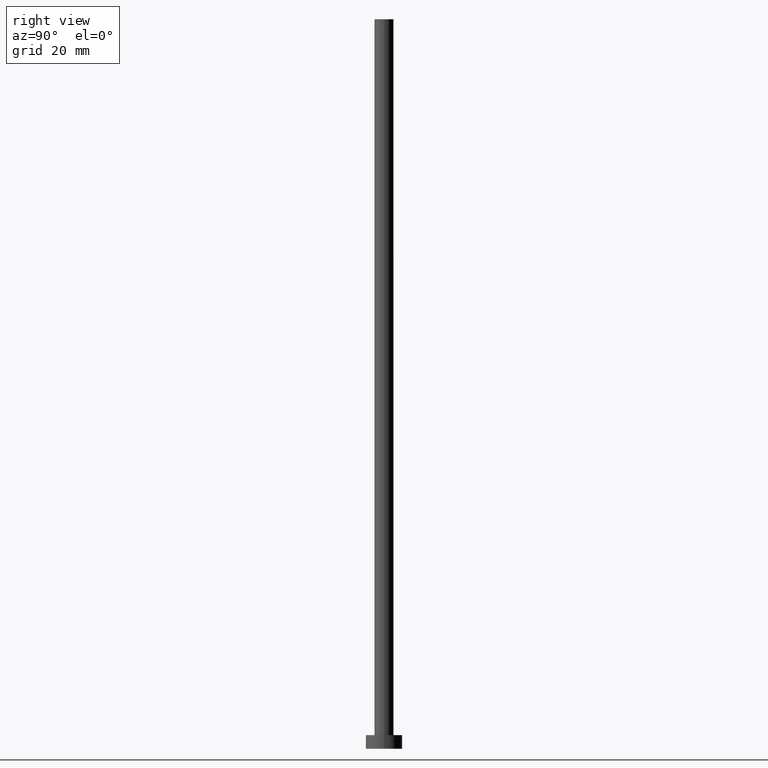
[diagram: clean part render]
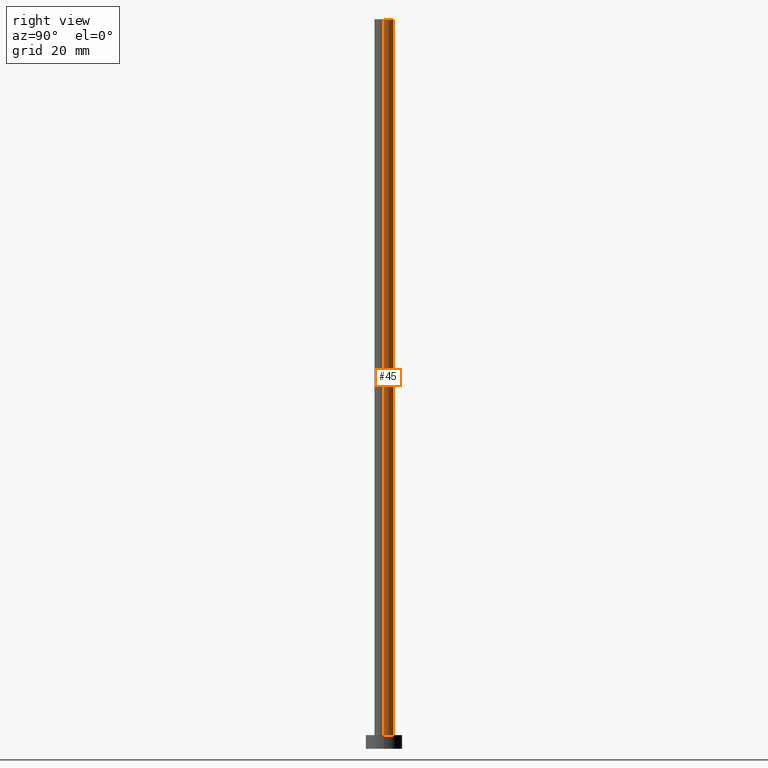
[diagram: same view with one face highlighted and labeled with its STEP entity id]
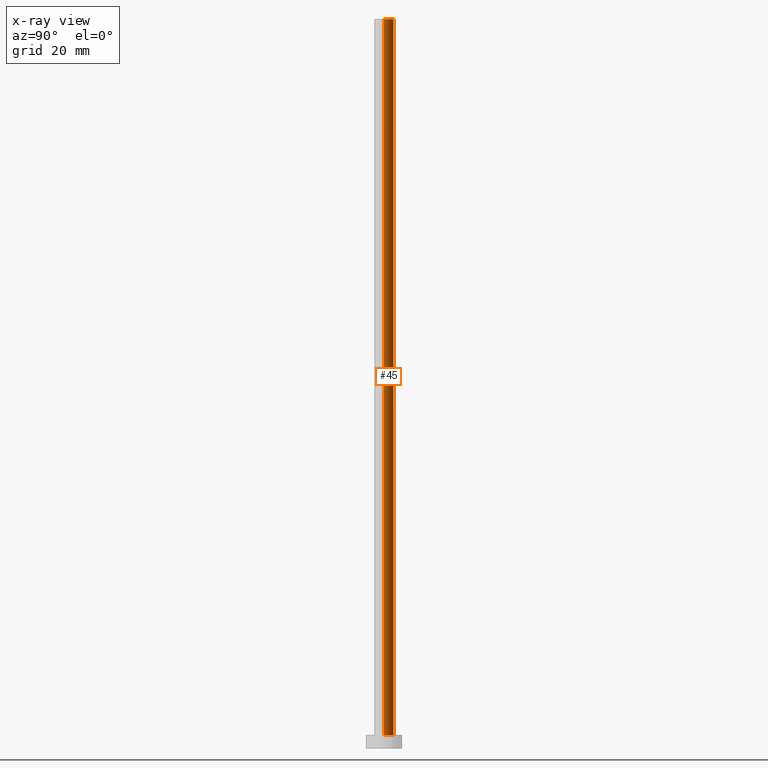
[diagram: x-ray of the same camera — body ghosted, the highlighted face saturated]
A machine part, right view. The second image highlights one B-rep face of the part: STEP entity #45.
The next image is the same camera in x-ray: the body ghosted, the highlighted face saturated — about 0% of this face is hidden behind the body in this view.
In plain terms, the highlighted cylindrical surface (edge-blend (fillet) strip) has radius 2.1 mm, axis along (-0, -0, -1).
Its self-contained STEP definition (entity closure, byte-faithful):
#4 = AXIS2_PLACEMENT_3D ( 'NONE', #194, #23, #110 ) ;
#6 = DIRECTION ( 'NONE',  ( 1.000000000000000000, 0.000000000000000000, 0.000000000000000000 ) ) ;
#10 = LINE ( 'NONE', #228, #236 ) ;
#13 = DIRECTION ( 'NONE',  ( 0.000000000000000000, 0.000000000000000000, 1.000000000000000000 ) ) ;
#21 = DIRECTION ( 'NONE',  ( 1.000000000000000000, 0.000000000000000000, 0.000000000000000000 ) ) ;
#23 = DIRECTION ( 'NONE',  ( -0.000000000000000000, -0.000000000000000000, -1.000000000000000000 ) ) ;
#25 = CARTESIAN_POINT ( 'NONE',  ( -2.100000000000000089, 0.000000000000000000, 3.000000000000000000 ) ) ;
#45 = ADVANCED_FACE ( 'NONE', ( #216 ), #96, .T. ) ;
#63 = VECTOR ( 'NONE', #134, 1000.000000000000000 ) ;
#68 = EDGE_CURVE ( 'NONE', #210, #191, #112, .T. ) ;
#74 = CARTESIAN_POINT ( 'NONE',  ( -2.100000000000000089, 0.000000000000000000, 160.0000000000000000 ) ) ;
#75 = CARTESIAN_POINT ( 'NONE',  ( 0.000000000000000000, 0.000000000000000000, 3.000000000000000000 ) ) ;
#76 = CARTESIAN_POINT ( 'NONE',  ( 2.100000000000000089, 2.571758278209441957E-16, 160.0000000000000000 ) ) ;
#81 = EDGE_CURVE ( 'NONE', #210, #142, #10, .T. ) ;
#90 = EDGE_LOOP ( 'NONE', ( #148, #182, #114, #158 ) ) ;
#92 = CARTESIAN_POINT ( 'NONE',  ( 0.000000000000000000, 0.000000000000000000, 160.0000000000000000 ) ) ;
#94 = CARTESIAN_POINT ( 'NONE',  ( -2.100000000000000089, 0.000000000000000000, 160.0000000000000000 ) ) ;
#96 = CYLINDRICAL_SURFACE ( 'NONE', #4, 2.100000000000000089 ) ;
#110 = DIRECTION ( 'NONE',  ( -1.000000000000000000, 0.000000000000000000, 0.000000000000000000 ) ) ;
#112 = CIRCLE ( 'NONE', #152, 2.100000000000000089 ) ;
#113 = CARTESIAN_POINT ( 'NONE',  ( 2.100000000000000089, 2.571758278209441957E-16, 3.000000000000000000 ) ) ;
#114 = ORIENTED_EDGE ( 'NONE', *, *, #206, .T. ) ;
#121 = AXIS2_PLACEMENT_3D ( 'NONE', #75, #237, #21 ) ;
#129 = DIRECTION ( 'NONE',  ( -0.000000000000000000, -0.000000000000000000, -1.000000000000000000 ) ) ;
#134 = DIRECTION ( 'NONE',  ( -0.000000000000000000, -0.000000000000000000, -1.000000000000000000 ) ) ;
#142 = VERTEX_POINT ( 'NONE', #113 ) ;
#148 = ORIENTED_EDGE ( 'NONE', *, *, #68, .F. ) ;
#152 = AXIS2_PLACEMENT_3D ( 'NONE', #92, #13, #6 ) ;
#158 = ORIENTED_EDGE ( 'NONE', *, *, #252, .F. ) ;
#177 = CIRCLE ( 'NONE', #121, 2.100000000000000089 ) ;
#182 = ORIENTED_EDGE ( 'NONE', *, *, #81, .T. ) ;
#191 = VERTEX_POINT ( 'NONE', #94 ) ;
#194 = CARTESIAN_POINT ( 'NONE',  ( 0.000000000000000000, 0.000000000000000000, 160.0000000000000000 ) ) ;
#206 = EDGE_CURVE ( 'NONE', #142, #219, #177, .T. ) ;
#210 = VERTEX_POINT ( 'NONE', #76 ) ;
#216 = FACE_OUTER_BOUND ( 'NONE', #90, .T. ) ;
#219 = VERTEX_POINT ( 'NONE', #25 ) ;
#228 = CARTESIAN_POINT ( 'NONE',  ( 2.100000000000000089, 2.571758278209441957E-16, 160.0000000000000000 ) ) ;
#236 = VECTOR ( 'NONE', #129, 1000.000000000000000 ) ;
#237 = DIRECTION ( 'NONE',  ( 0.000000000000000000, 0.000000000000000000, 1.000000000000000000 ) ) ;
#250 = LINE ( 'NONE', #74, #63 ) ;
#252 = EDGE_CURVE ( 'NONE', #191, #219, #250, .T. ) ;